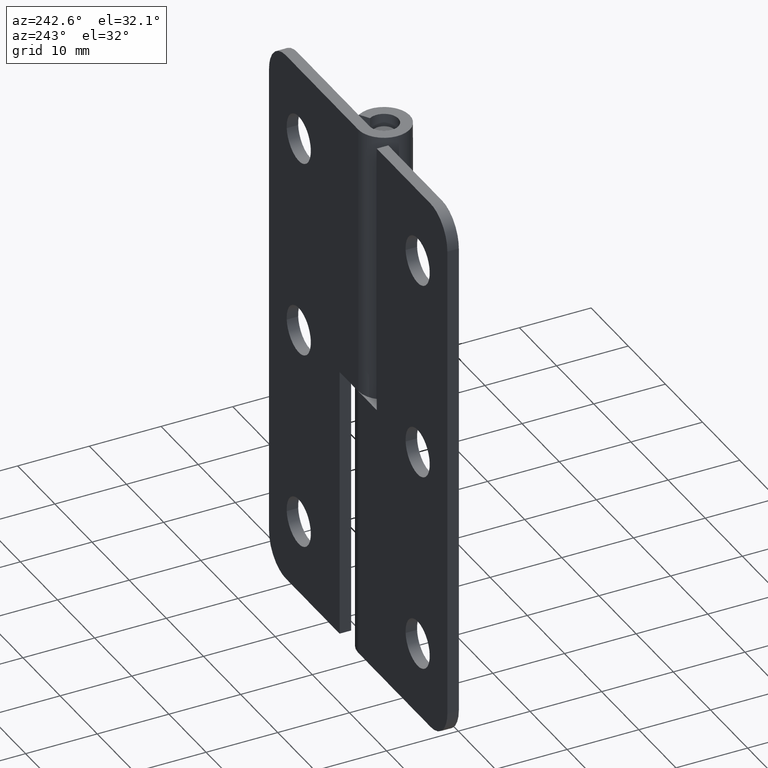
[diagram: clean part render]
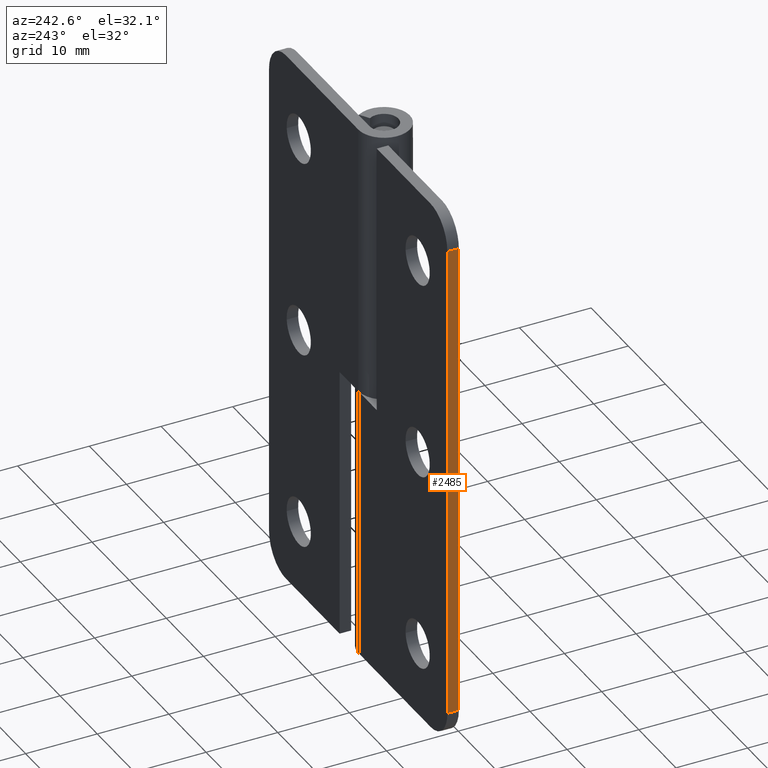
[diagram: same view with one face highlighted and labeled with its STEP entity id]
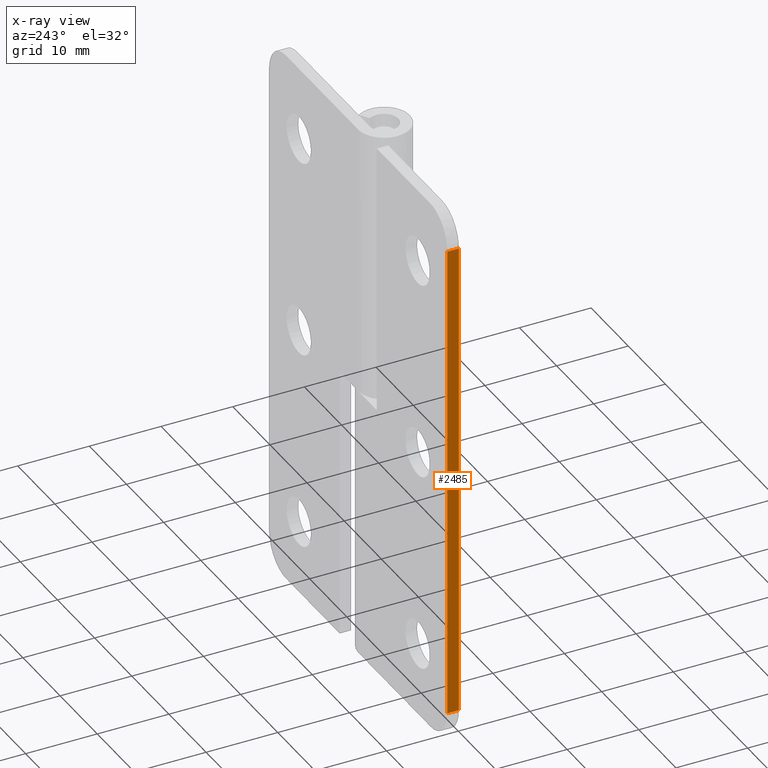
[diagram: x-ray of the same camera — body ghosted, the highlighted face saturated]
A machine part, auxiliary view. The second image highlights one B-rep face of the part: STEP entity #2485.
The next image is the same camera in x-ray: the body ghosted, the highlighted face saturated — about 0% of this face is hidden behind the body in this view.
In plain terms, the highlighted face is a freeform B-spline surface patch.
Its self-contained STEP definition (entity closure, byte-faithful):
#2184=CARTESIAN_POINT('',(-24.0,3.600002000000000,4.499999999999949));
#2185=VERTEX_POINT('',#2184);
#2206=CARTESIAN_POINT('',(-24.0,2.000004000000000,4.499999999999949));
#2207=VERTEX_POINT('',#2206);
#2221=CARTESIAN_POINT('',(-24.0,3.600002000000000,4.499999999999949));
#2222=CARTESIAN_POINT('',(-24.0,2.000004000000000,4.499999999999949));
#2223=QUASI_UNIFORM_CURVE('',1,(#2221,#2222),.UNSPECIFIED.,.F.,.U.);
#2224=EDGE_CURVE('',#2185,#2207,#2223,.T.);
#2243=CARTESIAN_POINT('',(-24.0,3.600002000000000,72.0));
#2244=VERTEX_POINT('',#2243);
#2260=CARTESIAN_POINT('',(-24.0,2.000004000000000,72.0));
#2261=VERTEX_POINT('',#2260);
#2262=CARTESIAN_POINT('',(-24.0,2.000004000000000,72.0));
#2263=CARTESIAN_POINT('',(-24.0,3.600002000000000,72.0));
#2264=QUASI_UNIFORM_CURVE('',1,(#2262,#2263),.UNSPECIFIED.,.F.,.U.);
#2265=EDGE_CURVE('',#2261,#2244,#2264,.T.);
#2466=CARTESIAN_POINT('',(-24.0,1.920084148060016,1.128375130828042));
#2467=CARTESIAN_POINT('',(-24.0,1.920084148060016,75.371626679662995));
#2468=CARTESIAN_POINT('',(-24.0,3.679921937770566,1.128375130828042));
#2469=CARTESIAN_POINT('',(-24.0,3.679921937770566,75.371626679662995));
#2470=B_SPLINE_SURFACE_WITH_KNOTS('',1,1,((#2466,#2468),(#2467,#2469)),.UNSPECIFIED.,.F.,.F.,.U.,(2,2),(2,2),(0.0,74.243251548834948),(0.041708358416706,0.958291686286777),.UNSPECIFIED.);
#2471=CARTESIAN_POINT('',(-24.0,3.600002000000000,4.499999999999949));
#2472=CARTESIAN_POINT('',(-24.0,3.600002000000000,72.0));
#2473=QUASI_UNIFORM_CURVE('',1,(#2471,#2472),.UNSPECIFIED.,.F.,.U.);
#2474=EDGE_CURVE('',#2185,#2244,#2473,.T.);
#2475=ORIENTED_EDGE('',*,*,#2474,.F.);
#2476=ORIENTED_EDGE('',*,*,#2224,.T.);
#2477=CARTESIAN_POINT('',(-24.0,2.000004000000000,4.499999999999949));
#2478=CARTESIAN_POINT('',(-24.0,2.000004000000000,72.0));
#2479=QUASI_UNIFORM_CURVE('',1,(#2477,#2478),.UNSPECIFIED.,.F.,.U.);
#2480=EDGE_CURVE('',#2207,#2261,#2479,.T.);
#2481=ORIENTED_EDGE('',*,*,#2480,.T.);
#2482=ORIENTED_EDGE('',*,*,#2265,.T.);
#2483=EDGE_LOOP('',(#2475,#2476,#2481,#2482));
#2484=FACE_OUTER_BOUND('',#2483,.T.);
#2485=ADVANCED_FACE('',(#2484),#2470,.T.);